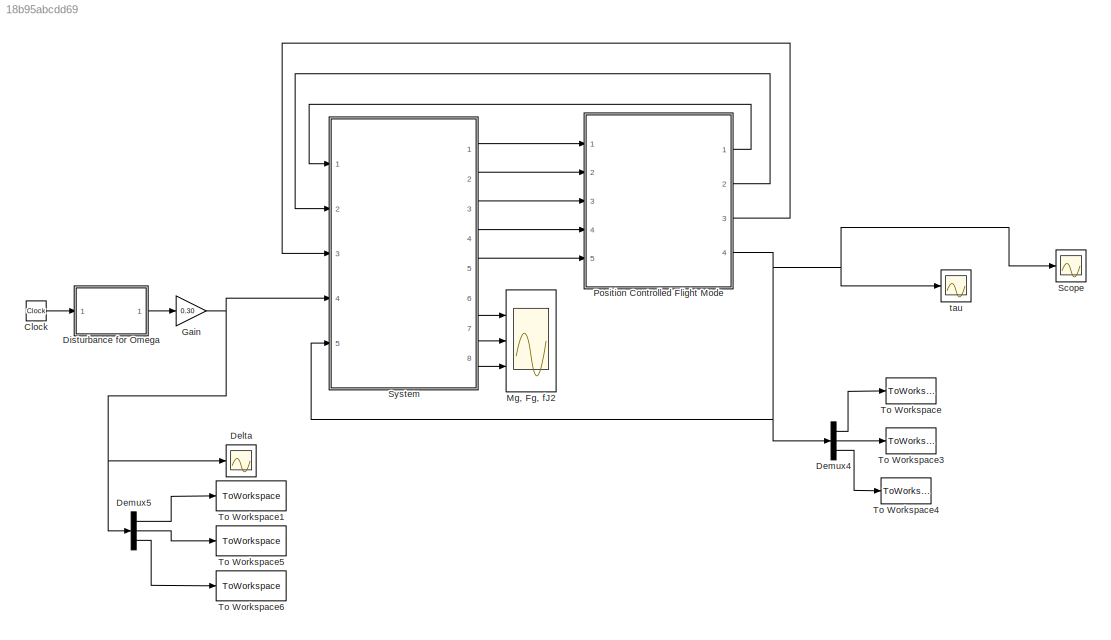
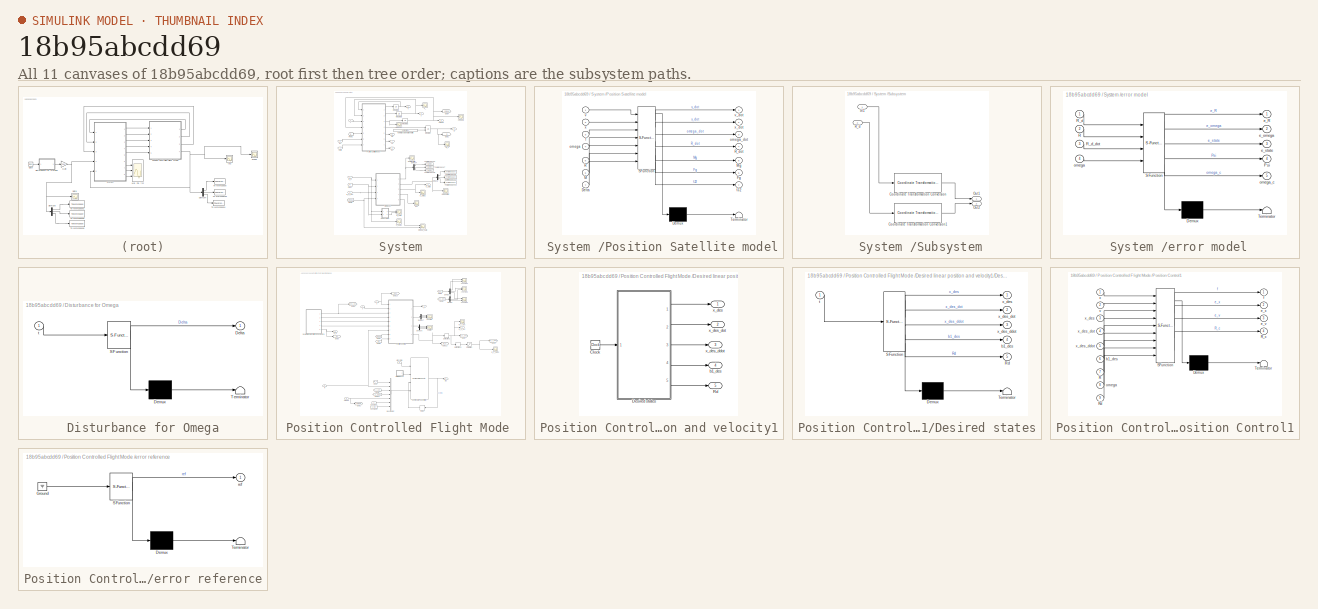
[diagram: thumbnail index - all 11 canvases of the model, root first then tree order]
MODEL slx_18b95abcdd69
KIND model
CONFIG AbsTol = auto
CONFIG EnableMultiTasking = off
CONFIG FixedStep = 0.001
CONFIG InitFcn = GeometricControllerParametersSatellite
CONFIG MaxStep = auto
CONFIG MinStep = auto
CONFIG RelTol = 1e-3
CONFIG SampleTimeConstraint = Unconstrained
CONFIG SolverName = ode8
CONFIG StartTime = 0.0
CONFIG StopTime = 20
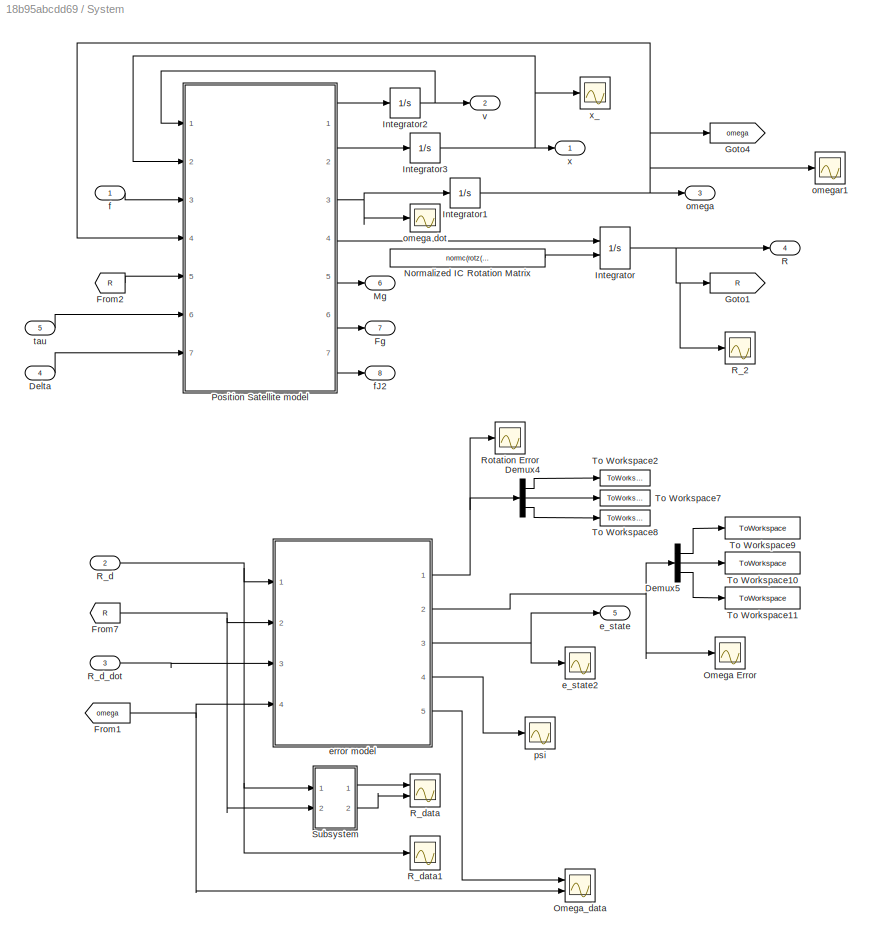
BLOCK [SubSystem]  System 
  Ports = [5, 8]
  RequestExecContextInheritance = off
BLOCK [Inport]  System /Delta
  Port = 4
BLOCK [Demux]  System /Demux4
  Outputs = 3
  Ports = [1, 3]
BLOCK [Demux]  System /Demux5
  Outputs = 3
  Ports = [1, 3]
BLOCK [Outport]  System /Fg
  Port = 7
BLOCK [From]  System /From1
  GotoTag = omega
BLOCK [From]  System /From2
  GotoTag = R
BLOCK [From]  System /From7
  GotoTag = R
BLOCK [Goto]  System /Goto1
  GotoTag = R
  NameLocation = right
BLOCK [Goto]  System /Goto4
  GotoTag = omega
  NameLocation = right
BLOCK [Integrator]  System /Integrator
  InitialCondition = eye(3)
  InitialConditionSource = external
  Ports = [2, 1]
BLOCK [Integrator]  System /Integrator1
  InitialCondition = [1;1;1]
  Ports = [1, 1]
BLOCK [Integrator]  System /Integrator2
  InitialCondition = [2;3;4]
  Ports = [1, 1]
BLOCK [Integrator]  System /Integrator3
  InitialCondition = [90;110;115]
  Ports = [1, 1]
BLOCK [Outport]  System /Mg
  Port = 6
BLOCK [Constant]  System /Normalized IC Rotation Matrix 
  Value = normc(rotz(35)*roty(-25)*rotx(9))
BLOCK [Scope]  System /Omega Error
  Floating = off
  NumInputPorts = 1
  Ports = [1]
  ScopeSpecificationString = Simulink.scopes.TimeScopeBlockCfg('CurrentConfiguration', extmgr.ConfigurationSet(extmgr.Configuration('Core','General UI',true),extmgr.Configuration('Core','Source UI',true),extmgr.Configuration('Sources','WiredSimulink',true,'DataLoggingVariableName','ScopeData1'),extmgr.Configuration('Visuals','Time Domain',true,'SerializedDisplays',{struct('MinYLimReal','-0.63082','MaxYLimReal','1.1812','YLabe...<+1569ch>
BLOCK [Scope]  System /Omega_data
  Floating = off
  NumInputPorts = 2
  Ports = [2]
  ScopeSpecificationString = Simulink.scopes.TimeScopeBlockCfg('CurrentConfiguration', extmgr.ConfigurationSet(extmgr.Configuration('Core','General UI',true),extmgr.Configuration('Core','Source UI',true),extmgr.Configuration('Sources','WiredSimulink',true,'DataLoggingVariableName','omega_data','DataLogging',true,'DataLoggingSaveFormat','StructureWithTime'),extmgr.Configuration('Visuals','Time Domain',true,'SerializedDisplays'...<+1606ch>
BLOCK [SubSystem]  System /Position Satellite model
  ErrorFcn = Stateflow.Translate.translate
  PermitHierarchicalResolution = ExplicitOnly
  Ports = [7, 7]
  RequestExecContextInheritance = off
  SFBlockType = MATLAB Function
  TreatAsAtomicUnit = on
BLOCK [Demux]  System /Position Satellite model/ Demux 
  Outputs = 1
  Ports = [1, 1]
BLOCK [S-Function]  System /Position Satellite model/ SFunction 
  EnableBusSupport = on
  FunctionName = sf_sfun
  Parameters = FF,J,J2,J_inv,Rearth,g,m,mu
  PortCounts = [7 8]
  Ports = [7, 8]
  SFcnIsStateOwnerBlock = off
  SFunctionDeploymentMode = off
  Tag = Stateflow S-Function 2
BLOCK [Terminator]  System /Position Satellite model/ Terminator 
BLOCK [Inport]  System /Position Satellite model/Delta
  Port = 7
BLOCK [Outport]  System /Position Satellite model/Fg
  Port = 6
BLOCK [Inport]  System /Position Satellite model/M
  Port = 6
BLOCK [Outport]  System /Position Satellite model/Mg
  Port = 5
BLOCK [Inport]  System /Position Satellite model/R
  Port = 5
BLOCK [Outport]  System /Position Satellite model/R_dot
  Port = 4
BLOCK [Inport]  System /Position Satellite model/f
  Port = 3
BLOCK [Outport]  System /Position Satellite model/fJ2
  Port = 7
BLOCK [Inport]  System /Position Satellite model/omega
  Port = 4
BLOCK [Outport]  System /Position Satellite model/omega_dot
  Port = 3
BLOCK [Inport]  System /Position Satellite model/v
BLOCK [Outport]  System /Position Satellite model/v_dot
BLOCK [Inport]  System /Position Satellite model/x
  Port = 2
BLOCK [Outport]  System /Position Satellite model/x_dot
  Port = 2
BLOCK [Outport]  System /R
  Port = 4
BLOCK [Scope]  System /R_2
  Floating = off
  NumInputPorts = 1
  Ports = [1]
  ScopeSpecificationString = Simulink.scopes.TimeScopeBlockCfg('CurrentConfiguration', extmgr.ConfigurationSet(extmgr.Configuration('Core','General UI',true),extmgr.Configuration('Core','Source UI',true),extmgr.Configuration('Sources','WiredSimulink',true,'DataLoggingVariableName','ScopeData3'),extmgr.Configuration('Visuals','Time Domain',true,'SerializedDisplays',{struct('MinYLimReal','-0.85743','MaxYLimReal','1.18769','YLab...<+1612ch>
BLOCK [Inport]  System /R_d
  Port = 2
BLOCK [Inport]  System /R_d_dot
  Port = 3
BLOCK [Scope]  System /R_data
  Floating = off
  NumInputPorts = 2
  Ports = [2]
  ScopeSpecificationString = Simulink.scopes.TimeScopeBlockCfg('CurrentConfiguration', extmgr.ConfigurationSet(extmgr.Configuration('Core','General UI',true),extmgr.Configuration('Core','Source UI',true),extmgr.Configuration('Sources','WiredSimulink',true,'DataLoggingVariableName','R_data','DataLogging',true,'DataLoggingSaveFormat','StructureWithTime'),extmgr.Configuration('Visuals','Time Domain',true,'SerializedDisplays',{st...<+1585ch>
BLOCK [Scope]  System /R_data1
  Floating = off
  NumInputPorts = 1
  Ports = [1]
  ScopeSpecificationString = Simulink.scopes.TimeScopeBlockCfg('CurrentConfiguration', extmgr.ConfigurationSet(extmgr.Configuration('Core','General UI',true),extmgr.Configuration('Core','Source UI',true),extmgr.Configuration('Sources','WiredSimulink',true,'DataLoggingVariableName','Rd','DataLogging',true,'DataLoggingSaveFormat','StructureWithTime'),extmgr.Configuration('Visuals','Time Domain',true,'SerializedDisplays',{struct...<+1488ch>
BLOCK [Scope]  System /Rotation Error
  Floating = off
  NumInputPorts = 1
  Ports = [1]
  ScopeSpecificationString = Simulink.scopes.TimeScopeBlockCfg('CurrentConfiguration', extmgr.ConfigurationSet(extmgr.Configuration('Core','General UI',true),extmgr.Configuration('Core','Source UI',true),extmgr.Configuration('Sources','WiredSimulink',true,'DataLoggingVariableName','ScopeData3'),extmgr.Configuration('Visuals','Time Domain',true,'SerializedDisplays',{struct('MinYLimReal','-0.09928','MaxYLimReal','0.84356','YLab...<+1559ch>
BLOCK [SubSystem]  System /Subsystem
  Ports = [2, 2]
  RequestExecContextInheritance = off
BLOCK [Reference]  System /Subsystem/Coordinate Transformation Conversion  REF=robotcorelib/Coordinate Transformation Conversion
  Ports = [1, 1]
  SourceBlock = robotcorelib/Coordinate Transformation Conversion
  SourceProductBaseCode = NV,RO,RR,UV
  SourceType = robotics.slcore.internal.block.CoordinateTransformationConversion
BLOCK [Reference]  System /Subsystem/Coordinate Transformation Conversion1  REF=robotcorelib/Coordinate Transformation Conversion
  Ports = [1, 1]
  SourceBlock = robotcorelib/Coordinate Transformation Conversion
  SourceProductBaseCode = NV,RO,RR,UV
  SourceType = robotics.slcore.internal.block.CoordinateTransformationConversion
BLOCK [Inport]  System /Subsystem/In1
BLOCK [Outport]  System /Subsystem/Out1
BLOCK [Outport]  System /Subsystem/Out2
  Port = 2
BLOCK [Inport]  System /Subsystem/R_d
  Port = 2
BLOCK [ToWorkspace]  System /To Workspace10
  FixptAsFi = on
  MaxDataPoints = inf
  Ports = [1]
  SampleTime = -1
  SaveFormat = Timeseries
  VariableName = OmegaErr2
BLOCK [ToWorkspace]  System /To Workspace11
  FixptAsFi = on
  MaxDataPoints = inf
  Ports = [1]
  SampleTime = -1
  SaveFormat = Timeseries
  VariableName = OmegaErr3
BLOCK [ToWorkspace]  System /To Workspace2
  FixptAsFi = on
  MaxDataPoints = inf
  Ports = [1]
  SampleTime = -1
  SaveFormat = Timeseries
  VariableName = rotErr1
BLOCK [ToWorkspace]  System /To Workspace7
  FixptAsFi = on
  MaxDataPoints = inf
  Ports = [1]
  SampleTime = -1
  SaveFormat = Timeseries
  VariableName = rotErr2
BLOCK [ToWorkspace]  System /To Workspace8
  FixptAsFi = on
  MaxDataPoints = inf
  Ports = [1]
  SampleTime = -1
  SaveFormat = Timeseries
  VariableName = rotErr3
BLOCK [ToWorkspace]  System /To Workspace9
  FixptAsFi = on
  MaxDataPoints = inf
  Ports = [1]
  SampleTime = -1
  SaveFormat = Timeseries
  VariableName = OmegaErr1
BLOCK [Outport]  System /e_state
  Port = 5
BLOCK [Scope]  System /e_state2
  Floating = off
  NumInputPorts = 1
  Ports = [1]
  ScopeSpecificationString = Simulink.scopes.TimeScopeBlockCfg('CurrentConfiguration', extmgr.ConfigurationSet(extmgr.Configuration('Core','General UI',true),extmgr.Configuration('Core','Source UI',true),extmgr.Configuration('Sources','WiredSimulink',true,'DataLoggingVariableName','ScopeData5'),extmgr.Configuration('Visuals','Time Domain',true,'SerializedDisplays',{struct('MinYLimReal','-0.80029','MaxYLimReal','1.3241','YLabe...<+1665ch>
BLOCK [SubSystem]  System /error model
  ErrorFcn = Stateflow.Translate.translate
  PermitHierarchicalResolution = ExplicitOnly
  Ports = [4, 5]
  RequestExecContextInheritance = off
  SFBlockType = MATLAB Function
  TreatAsAtomicUnit = on
BLOCK [Demux]  System /error model/ Demux 
  Outputs = 1
  Ports = [1, 1]
BLOCK [S-Function]  System /error model/ SFunction 
  EnableBusSupport = on
  FunctionName = sf_sfun
  PortCounts = [4 6]
  Ports = [4, 6]
  SFcnIsStateOwnerBlock = off
  SFunctionDeploymentMode = off
  Tag = Stateflow S-Function 3
BLOCK [Terminator]  System /error model/ Terminator 
BLOCK [Outport]  System /error model/Psi
  Port = 4
BLOCK [Inport]  System /error model/R
  Port = 2
BLOCK [Inport]  System /error model/R_d
BLOCK [Inport]  System /error model/R_d_dot
  Port = 3
BLOCK [Outport]  System /error model/e_R
BLOCK [Outport]  System /error model/e_omega
  Port = 2
BLOCK [Outport]  System /error model/e_state
  Port = 3
BLOCK [Inport]  System /error model/omega
  Port = 4
BLOCK [Outport]  System /error model/omega_c
  Port = 5
BLOCK [Inport]  System /f
BLOCK [Outport]  System /fJ2
  Port = 8
BLOCK [Outport]  System /omega
  Port = 3
BLOCK [Scope]  System /omega dot
  Floating = off
  NumInputPorts = 1
  Ports = [1]
  ScopeSpecificationString = Simulink.scopes.TimeScopeBlockCfg('CurrentConfiguration', extmgr.ConfigurationSet(extmgr.Configuration('Core','General UI',true),extmgr.Configuration('Core','Source UI',true),extmgr.Configuration('Sources','WiredSimulink',true,'DataLoggingVariableName','ScopeData2'),extmgr.Configuration('Visuals','Time Domain',true,'SerializedDisplays',{struct('MinYLimReal','-1.15371','MaxYLimReal','0.38904','YLab...<+1596ch>
BLOCK [Scope]  System /omegar1
  Floating = off
  NumInputPorts = 1
  Ports = [1]
  ScopeSpecificationString = Simulink.scopes.TimeScopeBlockCfg('CurrentConfiguration', extmgr.ConfigurationSet(extmgr.Configuration('Core','General UI',true),extmgr.Configuration('Core','Source UI',true),extmgr.Configuration('Sources','WiredSimulink',true,'DataLoggingVariableName','ScopeData1'),extmgr.Configuration('Visuals','Time Domain',true,'SerializedDisplays',{struct('MinYLimReal','0.26851','MaxYLimReal','1.08128','YLabe...<+1547ch>
BLOCK [Scope]  System /psi
  Floating = off
  NumInputPorts = 1
  Ports = [1]
  ScopeSpecificationString = Simulink.scopes.TimeScopeBlockCfg('CurrentConfiguration', extmgr.ConfigurationSet(extmgr.Configuration('Core','General UI',true),extmgr.Configuration('Core','Source UI',true),extmgr.Configuration('Sources','WiredSimulink',true,'DataLoggingVariableName','ScopeData9'),extmgr.Configuration('Visuals','Time Domain',true,'SerializedDisplays',{struct('MinYLimReal','-0.14156','MaxYLimReal','1.27406','YLab...<+1519ch>
BLOCK [Inport]  System /tau
  Port = 5
BLOCK [Outport]  System /v
  Port = 2
BLOCK [Outport]  System /x
BLOCK [Scope]  System /x_
  Floating = off
  NumInputPorts = 1
  Ports = [1]
  ScopeSpecificationString = Simulink.scopes.TimeScopeBlockCfg('CurrentConfiguration', extmgr.ConfigurationSet(extmgr.Configuration('Core','General UI',true),extmgr.Configuration('Core','Source UI',true),extmgr.Configuration('Sources','WiredSimulink',true,'DataLoggingVariableName','ScopeData3'),extmgr.Configuration('Visuals','Time Domain',true,'SerializedDisplays',{struct('MinYLimReal','43.26794','MaxYLimReal','215.50352','YL...<+1537ch>
BLOCK [Clock] Clock
BLOCK [Scope] Delta
  Floating = off
  NumInputPorts = 1
  Ports = [1]
  ScopeSpecificationString = Simulink.scopes.TimeScopeBlockCfg('CurrentConfiguration', extmgr.ConfigurationSet(extmgr.Configuration('Core','General UI',true),extmgr.Configuration('Core','Source UI',true),extmgr.Configuration('Sources','WiredSimulink',true,'DataLoggingVariableName','ScopeData1'),extmgr.Configuration('Visuals','Time Domain',true,'SerializedDisplays',{struct('MinYLimReal','-0.45375','MaxYLimReal','0.48375','YLab...<+1482ch>
BLOCK [Demux] Demux4
  Outputs = 3
  Ports = [1, 3]
BLOCK [Demux] Demux5
  Outputs = 3
  Ports = [1, 3]
BLOCK [SubSystem] Disturbance for Omega
  ErrorFcn = Stateflow.Translate.translate
  PermitHierarchicalResolution = ExplicitOnly
  Ports = [1, 1]
  RequestExecContextInheritance = off
  SFBlockType = MATLAB Function
  TreatAsAtomicUnit = on
BLOCK [Demux] Disturbance for Omega/ Demux 
  Outputs = 1
  Ports = [1, 1]
BLOCK [S-Function] Disturbance for Omega/ SFunction 
  EnableBusSupport = on
  FunctionName = sf_sfun
  PortCounts = [1 2]
  Ports = [1, 2]
  SFcnIsStateOwnerBlock = off
  SFunctionDeploymentMode = off
  Tag = Stateflow S-Function 1
BLOCK [Terminator] Disturbance for Omega/ Terminator 
BLOCK [Outport] Disturbance for Omega/Delta
  VectorParamsAs1DForOutWhenUnconnected = off
BLOCK [Inport] Disturbance for Omega/t
BLOCK [Gain] Gain
  Gain = 0.30
BLOCK [Scope] Mg, Fg, fJ2
  Floating = off
  NumInputPorts = 3
  Ports = [3]
  ScopeSpecificationString = Simulink.scopes.TimeScopeBlockCfg('CurrentConfiguration', extmgr.ConfigurationSet(extmgr.Configuration('Core','General UI',true),extmgr.Configuration('Core','Source UI',true),extmgr.Configuration('Sources','WiredSimulink',true,'DataLoggingVariableName','ScopeData1'),extmgr.Configuration('Visuals','Time Domain',true,'SerializedDisplays',{struct('MinYLimReal','-5719.2519','MaxYLimReal','6420.9656','...<+1705ch>
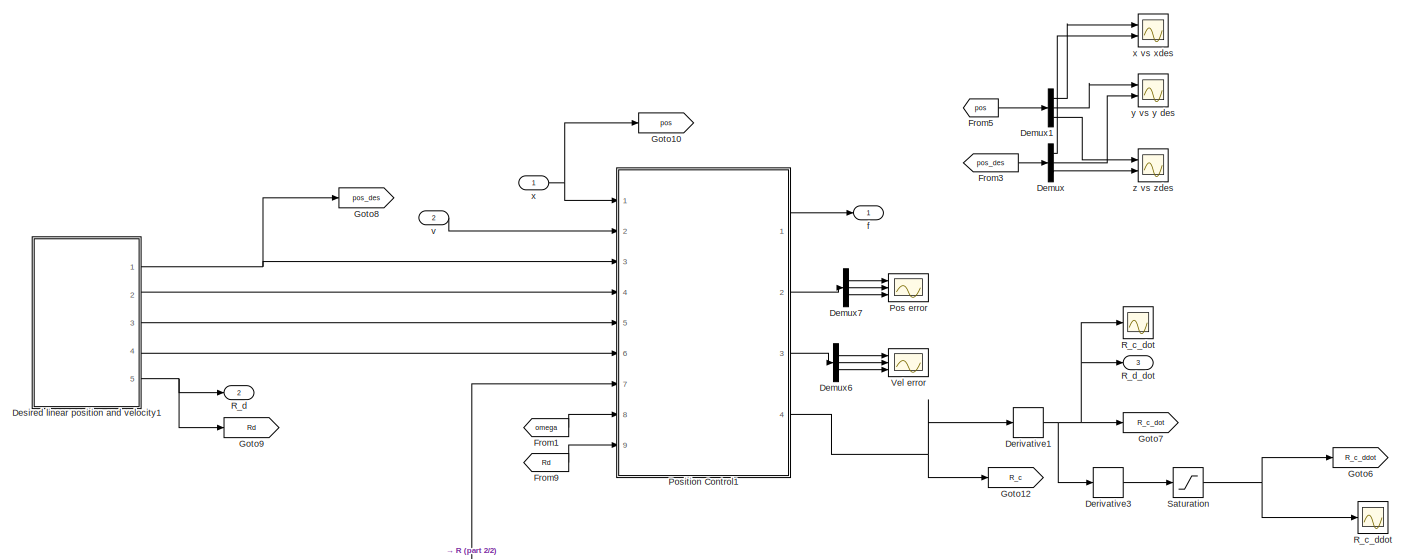
[diagram: Position Controlled Flight Mode  - part 1/2, full width, top band]
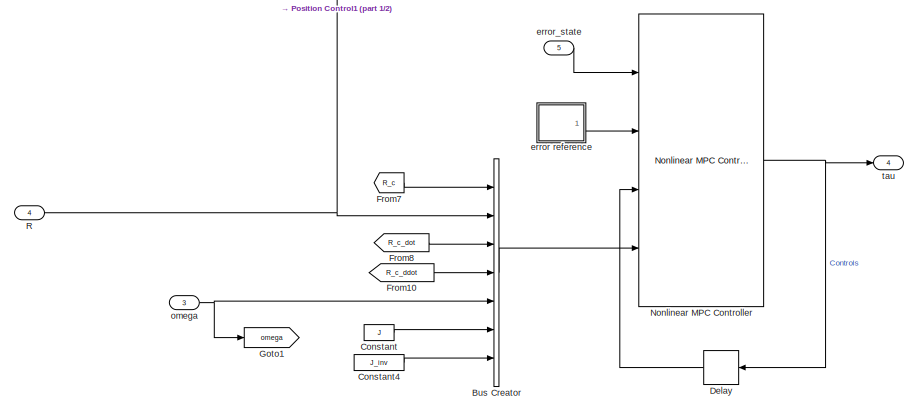
[diagram: Position Controlled Flight Mode  - part 2/2, bottom center region]
BLOCK [SubSystem] Position Controlled Flight Mode 
  Ports = [5, 4]
  RequestExecContextInheritance = off
BLOCK [BusCreator] Position Controlled Flight Mode /Bus Creator
  DisplayOption = bar
  InheritFromInputs = off
  Inputs = 7
  NonVirtualBus = on
  OutDataTypeStr = Bus: myBusObject
  Ports = [7, 1]
BLOCK [Constant] Position Controlled Flight Mode /Constant
  Value = J
BLOCK [Constant] Position Controlled Flight Mode /Constant4
  Value = J_inv
BLOCK [Delay] Position Controlled Flight Mode /Delay
  DelayLength = 1
  InitialCondition = 0
  InputPortMap = u0
  Ports = [1, 1]
BLOCK [Demux] Position Controlled Flight Mode /Demux
  Outputs = 3
  Ports = [1, 3]
BLOCK [Demux] Position Controlled Flight Mode /Demux1
  Outputs = 3
  Ports = [1, 3]
BLOCK [Demux] Position Controlled Flight Mode /Demux6
  Outputs = 3
  Ports = [1, 3]
BLOCK [Demux] Position Controlled Flight Mode /Demux7
  Outputs = 3
  Ports = [1, 3]
BLOCK [Derivative] Position Controlled Flight Mode /Derivative1
BLOCK [Derivative] Position Controlled Flight Mode /Derivative3
BLOCK [SubSystem] Position Controlled Flight Mode /Desired linear position and velocity1
  Ports = [0, 5]
  RequestExecContextInheritance = off
BLOCK [Clock] Position Controlled Flight Mode /Desired linear position and velocity1/Clock
BLOCK [SubSystem] Position Controlled Flight Mode /Desired linear position and velocity1/Desired states
  ErrorFcn = Stateflow.Translate.translate
  PermitHierarchicalResolution = ExplicitOnly
  Ports = [1, 5]
  RequestExecContextInheritance = off
  SFBlockType = MATLAB Function
  TreatAsAtomicUnit = on
BLOCK [Demux] Position Controlled Flight Mode /Desired linear position and velocity1/Desired states/ Demux 
  Outputs = 1
  Ports = [1, 1]
BLOCK [S-Function] Position Controlled Flight Mode /Desired linear position and velocity1/Desired states/ SFunction 
  EnableBusSupport = on
  FunctionName = sf_sfun
  PortCounts = [1 6]
  Ports = [1, 6]
  SFcnIsStateOwnerBlock = off
  SFunctionDeploymentMode = off
  Tag = Stateflow S-Function 5
BLOCK [Terminator] Position Controlled Flight Mode /Desired linear position and velocity1/Desired states/ Terminator 
BLOCK [Outport] Position Controlled Flight Mode /Desired linear position and velocity1/Desired states/Rd
  Port = 5
BLOCK [Outport] Position Controlled Flight Mode /Desired linear position and velocity1/Desired states/b1_des
  Port = 4
BLOCK [Inport] Position Controlled Flight Mode /Desired linear position and velocity1/Desired states/t
BLOCK [Outport] Position Controlled Flight Mode /Desired linear position and velocity1/Desired states/x_des
BLOCK [Outport] Position Controlled Flight Mode /Desired linear position and velocity1/Desired states/x_des_ddot
  Port = 3
BLOCK [Outport] Position Controlled Flight Mode /Desired linear position and velocity1/Desired states/x_des_dot
  Port = 2
BLOCK [Outport] Position Controlled Flight Mode /Desired linear position and velocity1/Rd
  Port = 5
BLOCK [Outport] Position Controlled Flight Mode /Desired linear position and velocity1/b1_des
  Port = 4
BLOCK [Outport] Position Controlled Flight Mode /Desired linear position and velocity1/x_des
BLOCK [Outport] Position Controlled Flight Mode /Desired linear position and velocity1/x_des_ddot
  Port = 3
BLOCK [Outport] Position Controlled Flight Mode /Desired linear position and velocity1/x_des_dot
  Port = 2
BLOCK [From] Position Controlled Flight Mode /From1
  GotoTag = omega
BLOCK [From] Position Controlled Flight Mode /From10
  GotoTag = R_c_ddot
BLOCK [From] Position Controlled Flight Mode /From3
  GotoTag = pos_des
BLOCK [From] Position Controlled Flight Mode /From5
  GotoTag = pos
BLOCK [From] Position Controlled Flight Mode /From7
  GotoTag = R_c
BLOCK [From] Position Controlled Flight Mode /From8
  GotoTag = R_c_dot
BLOCK [From] Position Controlled Flight Mode /From9
  GotoTag = Rd
BLOCK [Goto] Position Controlled Flight Mode /Goto1
  GotoTag = omega
BLOCK [Goto] Position Controlled Flight Mode /Goto10
  GotoTag = pos
BLOCK [Goto] Position Controlled Flight Mode /Goto12
  GotoTag = R_c
BLOCK [Goto] Position Controlled Flight Mode /Goto6
  GotoTag = R_c_ddot
BLOCK [Goto] Position Controlled Flight Mode /Goto7
  GotoTag = R_c_dot
BLOCK [Goto] Position Controlled Flight Mode /Goto8
  GotoTag = pos_des
BLOCK [Goto] Position Controlled Flight Mode /Goto9
  GotoTag = Rd
BLOCK [Reference] Position Controlled Flight Mode /Nonlinear MPC Controller  REF=mpclib/Nonlinear MPC Controller  (lib defined in mdl_ae329e0e0455)
  Ports = [4, 1]
  SCDEnableBlockLinearizationSpecification = on
  SourceBlock = mpclib/Nonlinear MPC Controller
  SourceProductBaseCode = MP
  SourceType = NonlinearMPC
BLOCK [Scope] Position Controlled Flight Mode /Pos error
  Floating = off
  NumInputPorts = 3
  Ports = [3]
  ScopeSpecificationString = Simulink.scopes.TimeScopeBlockCfg('CurrentConfiguration', extmgr.ConfigurationSet(extmgr.Configuration('Core','General UI',true),extmgr.Configuration('Core','Source UI',true),extmgr.Configuration('Sources','WiredSimulink',true,'DataLoggingVariableName','ScopeData5'),extmgr.Configuration('Visuals','Time Domain',true,'SerializedDisplays',{struct('MinYLimReal','-13.125','MaxYLimReal','18.125','YLabel...<+1578ch>
BLOCK [SubSystem] Position Controlled Flight Mode /Position Control1
  ErrorFcn = Stateflow.Translate.translate
  PermitHierarchicalResolution = ExplicitOnly
  Ports = [9, 4]
  RequestExecContextInheritance = off
  SFBlockType = MATLAB Function
  TreatAsAtomicUnit = on
BLOCK [Demux] Position Controlled Flight Mode /Position Control1/ Demux 
  Outputs = 1
  Ports = [1, 1]
BLOCK [S-Function] Position Controlled Flight Mode /Position Control1/ SFunction 
  EnableBusSupport = on
  FunctionName = sf_sfun
  Parameters = FF,J,J2,Rearth,e3,k_v,k_x,m,mu
  PortCounts = [9 5]
  Ports = [9, 5]
  SFcnIsStateOwnerBlock = off
  SFunctionDeploymentMode = off
  Tag = Stateflow S-Function 8
BLOCK [Terminator] Position Controlled Flight Mode /Position Control1/ Terminator 
BLOCK [Inport] Position Controlled Flight Mode /Position Control1/R
  Port = 7
BLOCK [Outport] Position Controlled Flight Mode /Position Control1/R_c
  Port = 4
BLOCK [Inport] Position Controlled Flight Mode /Position Control1/Rd
  Port = 9
BLOCK [Inport] Position Controlled Flight Mode /Position Control1/b1_des
  Port = 6
BLOCK [Outport] Position Controlled Flight Mode /Position Control1/e_v
  Port = 3
  VectorParamsAs1DForOutWhenUnconnected = off
BLOCK [Outport] Position Controlled Flight Mode /Position Control1/e_x
  Port = 2
  VectorParamsAs1DForOutWhenUnconnected = off
BLOCK [Outport] Position Controlled Flight Mode /Position Control1/f
BLOCK [Inport] Position Controlled Flight Mode /Position Control1/omega
  Port = 8
BLOCK [Inport] Position Controlled Flight Mode /Position Control1/v
  Port = 2
BLOCK [Inport] Position Controlled Flight Mode /Position Control1/x
BLOCK [Inport] Position Controlled Flight Mode /Position Control1/x_des
  Port = 3
BLOCK [Inport] Position Controlled Flight Mode /Position Control1/x_des_ddot
  Port = 5
BLOCK [Inport] Position Controlled Flight Mode /Position Control1/x_des_dot
  Port = 4
BLOCK [Inport] Position Controlled Flight Mode /R
  Port = 4
BLOCK [Scope] Position Controlled Flight Mode /R_c_ddot
  Floating = off
  NumInputPorts = 1
  Ports = [1]
  ScopeSpecificationString = Simulink.scopes.TimeScopeBlockCfg('CurrentConfiguration', extmgr.ConfigurationSet(extmgr.Configuration('Core','General UI',true),extmgr.Configuration('Core','Source UI',true),extmgr.Configuration('Sources','WiredSimulink',true,'DataLoggingVariableName','ScopeData2'),extmgr.Configuration('Visuals','Time Domain',true,'SerializedDisplays',{struct('MinYLimReal','-6.70033','MaxYLimReal','6.66635','YLab...<+1482ch>
BLOCK [Scope] Position Controlled Flight Mode /R_c_dot
  Floating = off
  NumInputPorts = 1
  Ports = [1]
  ScopeSpecificationString = Simulink.scopes.TimeScopeBlockCfg('CurrentConfiguration', extmgr.ConfigurationSet(extmgr.Configuration('Core','General UI',true),extmgr.Configuration('Core','Source UI',true),extmgr.Configuration('Sources','WiredSimulink',true,'DataLoggingVariableName','ScopeData3'),extmgr.Configuration('Visuals','Time Domain',true,'SerializedDisplays',{struct('MinYLimReal','-0.01161','MaxYLimReal','0.00869','YLab...<+1453ch>
BLOCK [Outport] Position Controlled Flight Mode /R_d
  Port = 2
BLOCK [Outport] Position Controlled Flight Mode /R_d_dot
  Port = 3
BLOCK [Saturate] Position Controlled Flight Mode /Saturation
  LowerLimit = -30
  UpperLimit = 30
BLOCK [Scope] Position Controlled Flight Mode /Vel error
  Floating = off
  NumInputPorts = 3
  Ports = [3]
  ScopeSpecificationString = Simulink.scopes.TimeScopeBlockCfg('CurrentConfiguration', extmgr.ConfigurationSet(extmgr.Configuration('Core','General UI',true),extmgr.Configuration('Core','Source UI',true),extmgr.Configuration('Sources','WiredSimulink',true,'DataLoggingVariableName','ScopeData6'),extmgr.Configuration('Visuals','Time Domain',true,'SerializedDisplays',{struct('MinYLimReal','-205.25','MaxYLimReal','72.54735','YLab...<+1606ch>
BLOCK [SubSystem] Position Controlled Flight Mode /error reference
  ErrorFcn = Stateflow.Translate.translate
  PermitHierarchicalResolution = ExplicitOnly
  Ports = [0, 1]
  RequestExecContextInheritance = off
  SFBlockType = MATLAB Function
  TreatAsAtomicUnit = on
BLOCK [Demux] Position Controlled Flight Mode /error reference/ Demux 
  Outputs = 1
  Ports = [1, 1]
BLOCK [Ground] Position Controlled Flight Mode /error reference/ Ground 
BLOCK [S-Function] Position Controlled Flight Mode /error reference/ SFunction 
  EnableBusSupport = on
  FunctionName = sf_sfun
  PortCounts = [1 2]
  Ports = [1, 2]
  SFcnIsStateOwnerBlock = off
  SFunctionDeploymentMode = off
  Tag = Stateflow S-Function 7
BLOCK [Terminator] Position Controlled Flight Mode /error reference/ Terminator 
BLOCK [Outport] Position Controlled Flight Mode /error reference/ref
BLOCK [Inport] Position Controlled Flight Mode /error_state
  Port = 5
BLOCK [Outport] Position Controlled Flight Mode /f
BLOCK [Inport] Position Controlled Flight Mode /omega
  Port = 3
BLOCK [Outport] Position Controlled Flight Mode /tau
  Port = 4
BLOCK [Inport] Position Controlled Flight Mode /v
  Port = 2
BLOCK [Inport] Position Controlled Flight Mode /x
BLOCK [Scope] Position Controlled Flight Mode /x vs xdes
  Floating = off
  NumInputPorts = 2
  Ports = [2]
  ScopeSpecificationString = Simulink.scopes.TimeScopeBlockCfg('CurrentConfiguration', extmgr.ConfigurationSet(extmgr.Configuration('Core','General UI',true),extmgr.Configuration('Core','Source UI',true),extmgr.Configuration('Sources','WiredSimulink',true,'DataLoggingVariableName','ScopeData2'),extmgr.Configuration('Visuals','Time Domain',true,'SerializedDisplays',{struct('MinYLimReal','87.25','MaxYLimReal','114.75','YLabelRe...<+1508ch>
BLOCK [Scope] Position Controlled Flight Mode /y vs y des
  Floating = off
  NumInputPorts = 2
  Ports = [2]
  ScopeSpecificationString = Simulink.scopes.TimeScopeBlockCfg('CurrentConfiguration', extmgr.ConfigurationSet(extmgr.Configuration('Core','General UI',true),extmgr.Configuration('Core','Source UI',true),extmgr.Configuration('Sources','WiredSimulink',true,'DataLoggingVariableName','ScopeData3'),extmgr.Configuration('Visuals','Time Domain',true,'SerializedDisplays',{struct('MinYLimReal','92.54927','MaxYLimReal','117.05659','YL...<+1530ch>
BLOCK [Scope] Position Controlled Flight Mode /z vs zdes
  Floating = off
  NumInputPorts = 2
  Ports = [2]
  ScopeSpecificationString = Simulink.scopes.TimeScopeBlockCfg('CurrentConfiguration', extmgr.ConfigurationSet(extmgr.Configuration('Core','General UI',true),extmgr.Configuration('Core','Source UI',true),extmgr.Configuration('Sources','WiredSimulink',true,'DataLoggingVariableName','ScopeData4'),extmgr.Configuration('Visuals','Time Domain',true,'SerializedDisplays',{struct('MinYLimReal','97.05593','MaxYLimReal','116.99379','YL...<+1532ch>
BLOCK [Scope] Scope
  Floating = off
  NumInputPorts = 1
  Ports = [1]
  ScopeSpecificationString = Simulink.scopes.TimeScopeBlockCfg('CurrentConfiguration', extmgr.ConfigurationSet(extmgr.Configuration('Core','General UI',true),extmgr.Configuration('Core','Source UI',true),extmgr.Configuration('Sources','WiredSimulink',true,'DataLoggingVariableName','Tau_data','DataLogging',true,'DataLoggingSaveFormat','StructureWithTime'),extmgr.Configuration('Visuals','Time Domain',true,'SerializedDisplays',{...<+1596ch>
BLOCK [ToWorkspace] To Workspace
  FixptAsFi = on
  MaxDataPoints = inf
  Ports = [1]
  SampleTime = -1
  SaveFormat = Timeseries
  VariableName = tau1
BLOCK [ToWorkspace] To Workspace1
  FixptAsFi = on
  MaxDataPoints = inf
  Ports = [1]
  SampleTime = -1
  SaveFormat = Timeseries
  VariableName = Delta1
BLOCK [ToWorkspace] To Workspace3
  FixptAsFi = on
  MaxDataPoints = inf
  Ports = [1]
  SampleTime = -1
  SaveFormat = Timeseries
  VariableName = tau2
BLOCK [ToWorkspace] To Workspace4
  FixptAsFi = on
  MaxDataPoints = inf
  Ports = [1]
  SampleTime = -1
  SaveFormat = Timeseries
  VariableName = tau3
BLOCK [ToWorkspace] To Workspace5
  FixptAsFi = on
  MaxDataPoints = inf
  Ports = [1]
  SampleTime = -1
  SaveFormat = Timeseries
  VariableName = Delta2
BLOCK [ToWorkspace] To Workspace6
  FixptAsFi = on
  MaxDataPoints = inf
  Ports = [1]
  SampleTime = -1
  SaveFormat = Timeseries
  VariableName = Delta3
BLOCK [Scope] tau
  Floating = off
  NumInputPorts = 1
  Ports = [1]
  ScopeSpecificationString = Simulink.scopes.TimeScopeBlockCfg('CurrentConfiguration', extmgr.ConfigurationSet(extmgr.Configuration('Core','General UI',true),extmgr.Configuration('Core','Source UI',true),extmgr.Configuration('Sources','WiredSimulink',true,'DataLoggingVariableName','ScopeData1'),extmgr.Configuration('Visuals','Time Domain',true,'SerializedDisplays',{struct('MinYLimReal','-111.15087','MaxYLimReal','14.70943','Y...<+1651ch>
LINE  System /Delta:1 ->  System /Position Satellite model:7
LINE  System /Demux4:1 ->  System /To Workspace2:1
LINE  System /Demux4:2 ->  System /To Workspace7:1
LINE  System /Demux4:3 ->  System /To Workspace8:1
LINE  System /Demux5:1 ->  System /To Workspace9:1
LINE  System /Demux5:2 ->  System /To Workspace10:1
LINE  System /Demux5:3 ->  System /To Workspace11:1
NET  System /From1:1 ->  System /Omega_data:2,  System /error model:4
LINE  System /From2:1 ->  System /Position Satellite model:5
NET  System /From7:1 ->  System /Subsystem:2,  System /error model:2
NET  System /Integrator1:1 ->  System /Goto4:1,  System /Position Satellite model:4,  System /omega:1,  System /omegar1:1
NET  System /Integrator2:1 ->  System /Position Satellite model:1,  System /v:1
NET  System /Integrator3:1 ->  System /Position Satellite model:2,  System /x:1,  System /x_:1
NET  System /Integrator:1 ->  System /Goto1:1,  System /R:1,  System /R_2:1
LINE  System /Normalized IC Rotation Matrix :1 ->  System /Integrator:2
LINE  System /Position Satellite model:1 ->  System /Integrator2:1
LINE  System /Position Satellite model:2 ->  System /Integrator3:1
NET  System /Position Satellite model:3 ->  System /Integrator1:1,  System /omega dot:1
LINE  System /Position Satellite model:4 ->  System /Integrator:1
LINE  System /Position Satellite model:5 ->  System /Mg:1
LINE  System /Position Satellite model:6 ->  System /Fg:1
LINE  System /Position Satellite model:7 ->  System /fJ2:1
NET  System /R_d:1 ->  System /R_data1:1,  System /Subsystem:1,  System /error model:1
LINE  System /R_d_dot:1 ->  System /error model:3
LINE  System /Subsystem/Coordinate Transformation Conversion1:1 ->  System /Subsystem/Out2:1
LINE  System /Subsystem/Coordinate Transformation Conversion:1 ->  System /Subsystem/Out1:1
LINE  System /Subsystem/In1:1 ->  System /Subsystem/Coordinate Transformation Conversion:1
LINE  System /Subsystem/R_d:1 ->  System /Subsystem/Coordinate Transformation Conversion1:1
LINE  System /Subsystem:1 ->  System /R_data:1
LINE  System /Subsystem:2 ->  System /R_data:2
NET  System /error model:1 ->  System /Demux4:1,  System /Rotation Error:1
NET  System /error model:2 ->  System /Demux5:1,  System /Omega Error:1
NET  System /error model:3 ->  System /e_state2:1,  System /e_state:1
LINE  System /error model:4 ->  System /psi:1
LINE  System /error model:5 ->  System /Omega_data:1
LINE  System /f:1 ->  System /Position Satellite model:3
LINE  System /tau:1 ->  System /Position Satellite model:6
LINE  System :1 -> Position Controlled Flight Mode :1
LINE  System :2 -> Position Controlled Flight Mode :2
LINE  System :3 -> Position Controlled Flight Mode :3
LINE  System :4 -> Position Controlled Flight Mode :4
LINE  System :5 -> Position Controlled Flight Mode :5
LINE  System :6 -> Mg, Fg, fJ2:1
LINE  System :7 -> Mg, Fg, fJ2:2
LINE  System :8 -> Mg, Fg, fJ2:3
LINE Clock:1 -> Disturbance for Omega:1
LINE Demux4:1 -> To Workspace:1
LINE Demux4:2 -> To Workspace3:1
LINE Demux4:3 -> To Workspace4:1
LINE Demux5:1 -> To Workspace1:1
LINE Demux5:2 -> To Workspace5:1
LINE Demux5:3 -> To Workspace6:1
LINE Disturbance for Omega:1 -> Gain:1
NET Gain:1 ->  System :4, Delta:1, Demux5:1
LINE Position Controlled Flight Mode /Bus Creator:1 -> Position Controlled Flight Mode /Nonlinear MPC Controller:4
LINE Position Controlled Flight Mode /Constant4:1 -> Position Controlled Flight Mode /Bus Creator:7
LINE Position Controlled Flight Mode /Constant:1 -> Position Controlled Flight Mode /Bus Creator:6
LINE Position Controlled Flight Mode /Delay:1 -> Position Controlled Flight Mode /Nonlinear MPC Controller:3
LINE Position Controlled Flight Mode /Demux1:1 -> Position Controlled Flight Mode /x vs xdes:1
LINE Position Controlled Flight Mode /Demux1:2 -> Position Controlled Flight Mode /y vs y des:1
LINE Position Controlled Flight Mode /Demux1:3 -> Position Controlled Flight Mode /z vs zdes:1
LINE Position Controlled Flight Mode /Demux6:1 -> Position Controlled Flight Mode /Vel error:1
LINE Position Controlled Flight Mode /Demux6:2 -> Position Controlled Flight Mode /Vel error:2
LINE Position Controlled Flight Mode /Demux6:3 -> Position Controlled Flight Mode /Vel error:3
LINE Position Controlled Flight Mode /Demux7:1 -> Position Controlled Flight Mode /Pos error:1
LINE Position Controlled Flight Mode /Demux7:2 -> Position Controlled Flight Mode /Pos error:2
LINE Position Controlled Flight Mode /Demux7:3 -> Position Controlled Flight Mode /Pos error:3
LINE Position Controlled Flight Mode /Demux:1 -> Position Controlled Flight Mode /x vs xdes:2
LINE Position Controlled Flight Mode /Demux:2 -> Position Controlled Flight Mode /y vs y des:2
LINE Position Controlled Flight Mode /Demux:3 -> Position Controlled Flight Mode /z vs zdes:2
NET Position Controlled Flight Mode /Derivative1:1 -> Position Controlled Flight Mode /Derivative3:1, Position Controlled Flight Mode /Goto7:1, Position Controlled Flight Mode /R_c_dot:1, Position Controlled Flight Mode /R_d_dot:1
LINE Position Controlled Flight Mode /Derivative3:1 -> Position Controlled Flight Mode /Saturation:1
LINE Position Controlled Flight Mode /Desired linear position and velocity1/Clock:1 -> Position Controlled Flight Mode /Desired linear position and velocity1/Desired states:1
LINE Position Controlled Flight Mode /Desired linear position and velocity1/Desired states:1 -> Position Controlled Flight Mode /Desired linear position and velocity1/x_des:1
LINE Position Controlled Flight Mode /Desired linear position and velocity1/Desired states:2 -> Position Controlled Flight Mode /Desired linear position and velocity1/x_des_dot:1
LINE Position Controlled Flight Mode /Desired linear position and velocity1/Desired states:3 -> Position Controlled Flight Mode /Desired linear position and velocity1/x_des_ddot:1
LINE Position Controlled Flight Mode /Desired linear position and velocity1/Desired states:4 -> Position Controlled Flight Mode /Desired linear position and velocity1/b1_des:1
LINE Position Controlled Flight Mode /Desired linear position and velocity1/Desired states:5 -> Position Controlled Flight Mode /Desired linear position and velocity1/Rd:1
NET Position Controlled Flight Mode /Desired linear position and velocity1:1 -> Position Controlled Flight Mode /Goto8:1, Position Controlled Flight Mode /Position Control1:3
LINE Position Controlled Flight Mode /Desired linear position and velocity1:2 -> Position Controlled Flight Mode /Position Control1:4
LINE Position Controlled Flight Mode /Desired linear position and velocity1:3 -> Position Controlled Flight Mode /Position Control1:5
LINE Position Controlled Flight Mode /Desired linear position and velocity1:4 -> Position Controlled Flight Mode /Position Control1:6
NET Position Controlled Flight Mode /Desired linear position and velocity1:5 -> Position Controlled Flight Mode /Goto9:1, Position Controlled Flight Mode /R_d:1
LINE Position Controlled Flight Mode /From10:1 -> Position Controlled Flight Mode /Bus Creator:4
LINE Position Controlled Flight Mode /From1:1 -> Position Controlled Flight Mode /Position Control1:8
LINE Position Controlled Flight Mode /From3:1 -> Position Controlled Flight Mode /Demux:1
LINE Position Controlled Flight Mode /From5:1 -> Position Controlled Flight Mode /Demux1:1
LINE Position Controlled Flight Mode /From7:1 -> Position Controlled Flight Mode /Bus Creator:1
LINE Position Controlled Flight Mode /From8:1 -> Position Controlled Flight Mode /Bus Creator:3
LINE Position Controlled Flight Mode /From9:1 -> Position Controlled Flight Mode /Position Control1:9
NET Position Controlled Flight Mode /Nonlinear MPC Controller:1 -> Position Controlled Flight Mode /Delay:1, Position Controlled Flight Mode /tau:1
LINE Position Controlled Flight Mode /Position Control1:1 -> Position Controlled Flight Mode /f:1
LINE Position Controlled Flight Mode /Position Control1:2 -> Position Controlled Flight Mode /Demux7:1
LINE Position Controlled Flight Mode /Position Control1:3 -> Position Controlled Flight Mode /Demux6:1
NET Position Controlled Flight Mode /Position Control1:4 -> Position Controlled Flight Mode /Derivative1:1, Position Controlled Flight Mode /Goto12:1
NET Position Controlled Flight Mode /R:1 -> Position Controlled Flight Mode /Bus Creator:2, Position Controlled Flight Mode /Position Control1:7
NET Position Controlled Flight Mode /Saturation:1 -> Position Controlled Flight Mode /Goto6:1, Position Controlled Flight Mode /R_c_ddot:1
LINE Position Controlled Flight Mode /error reference:1 -> Position Controlled Flight Mode /Nonlinear MPC Controller:2
LINE Position Controlled Flight Mode /error_state:1 -> Position Controlled Flight Mode /Nonlinear MPC Controller:1
NET Position Controlled Flight Mode /omega:1 -> Position Controlled Flight Mode /Bus Creator:5, Position Controlled Flight Mode /Goto1:1
LINE Position Controlled Flight Mode /v:1 -> Position Controlled Flight Mode /Position Control1:2
NET Position Controlled Flight Mode /x:1 -> Position Controlled Flight Mode /Goto10:1, Position Controlled Flight Mode /Position Control1:1
LINE Position Controlled Flight Mode :1 ->  System :1
LINE Position Controlled Flight Mode :2 ->  System :2
LINE Position Controlled Flight Mode :3 ->  System :3
NET Position Controlled Flight Mode :4 ->  System :5, Demux4:1, Scope:1, tau:1
note: NET lines group one-source signal fan-out (src -> all destinations, sorted); 1:1 wires keep LINE
CHART  System
/error model states=1 transitions=1
  STATE_LABEL 'eML_blk_kernel()'
  STATE_LABEL "SCRIPT:\nfunction [ e_R, e_omega, e_state, Psi,omega_c] = fcn(R_d, R, R_d_dot,omega)\n\n    omega_c_hat =  R_d' * R_d_dot ;           %(22)\n    omega_c = [omega_c_hat(3,2); - omega_c_hat(3,1); omega_c_hat(2,1)];\n            \n    R_mul = (R_d'*R) - (R'*R_d);\n    R_mul_vect = [R_mul(3,2); -R_mul(3,1); R_mul(2,1)];\n    e_R = 0.5 * R_mul_vect;   %(21)   \n    e_omega = omega - (R'*R_d*omega_c);  %(21)\n   ...<+85ch>"
CHART Position Controlled Flight Mode
/Desired linear position and velocity1/Desired states states=1 transitions=1
  STATE_LABEL 'eML_blk_kernel()'
  STATE_LABEL 'SCRIPT:\nfunction [x_des, x_des_dot, x_des_ddot, b1_des, Rd] = fcn(t)\n\n% Generar unas trayectorias habituales que deba seguir un satellite\nx_des     = [             100 + 0.4*t ; % 4\n                          100 + 5*sin(0.7*t) ; % 0.4\n                          100 + 0.3*t]; % 0.6\n\nx_des_dot = [               0.4 ; % 4\n                            0.7*5*cos(0.7*t); % 0.4*pi = 1.256\n                 ...<+941ch>'
CHART Position Controlled Flight Mode
/error reference states=1 transitions=1
  STATE_LABEL 'eML_blk_kernel()'
  STATE_LABEL 'SCRIPT:\nfunction ref = fcn()\n\n    ref    = zeros(1,7);\n\nend'
CHART Position Controlled Flight Mode
/Position Control1 states=1 transitions=1
  STATE_LABEL 'eML_blk_kernel()'
  STATE_LABEL "SCRIPT:\nfunction [f, e_x, e_v, R_c] = fcn( x, v, x_des, x_des_dot, x_des_ddot, b1_des, R, omega, Rd, k_v, m, e3, k_x, mu, FF, Rearth, J2,J)\n\ne_x = x - x_des;   %(17)\ne_v = v - R'*x_des_dot;   %(18) x_dot = R*v \n\nR_B = R'*x;\nFg = - m*(mu/norm(x)^3)*R_B;\nfJ2 = - ( (3*m*mu*J2*Rearth^2*R')/(2*norm(x)^5) ) * ( FF - (( 5*(x(3,1))^2 )/( norm(x)^2 ))*eye(3) ) * x  ;\n\nf = - k_x*e_x - k_v*e_v - m*cross(omeg...<+416ch>"
CHART Disturbance for Omega states=1 transitions=1
  STATE_LABEL 'eML_blk_kernel()'
  STATE_LABEL 'SCRIPT:\nfunction Delta = fcn(t)\n\n%parameters\nkapa1 = 1.2;\nkapa2 = 1.1;\nkapa3 = 1.3;\n\n%distirbance\nDelta = [ kapa1*sin(t); \n          kapa2*cos(t);\n          kapa3];\n'
CHART  System
/Position Satellite model states=1 transitions=1
  STATE_LABEL 'eML_blk_kernel()'
  STATE_LABEL "SCRIPT:\nfunction [ v_dot,x_dot,omega_dot,R_dot, Mg,Fg,fJ2] = fcn(v, x, f, m, g,omega,R,M,J, J_inv,mu, FF, Rearth, J2, Delta)\n\nomega_hat = [   0    , -omega(3),  omega(2);\n             omega(3),    0     , -omega(1);\n            -omega(2), omega(1) ,      0     ];\n\n% Utility terms:\nR_B = R'*x;\nMg  = 3*(mu/norm(x)^5)*( cross(R_B, J*R_B) );\nFg  = - m*(mu/norm(x)^3)*R_B;\nfJ2 = - ( (3*m*mu*J2*Rearth^2*...<+461ch>"
CHART  states=0 transitions=0
CHART  states=0 transitions=0
CHART  states=0 transitions=0
CHART  states=0 transitions=0
CHART  states=0 transitions=0
CHART  states=0 transitions=0
